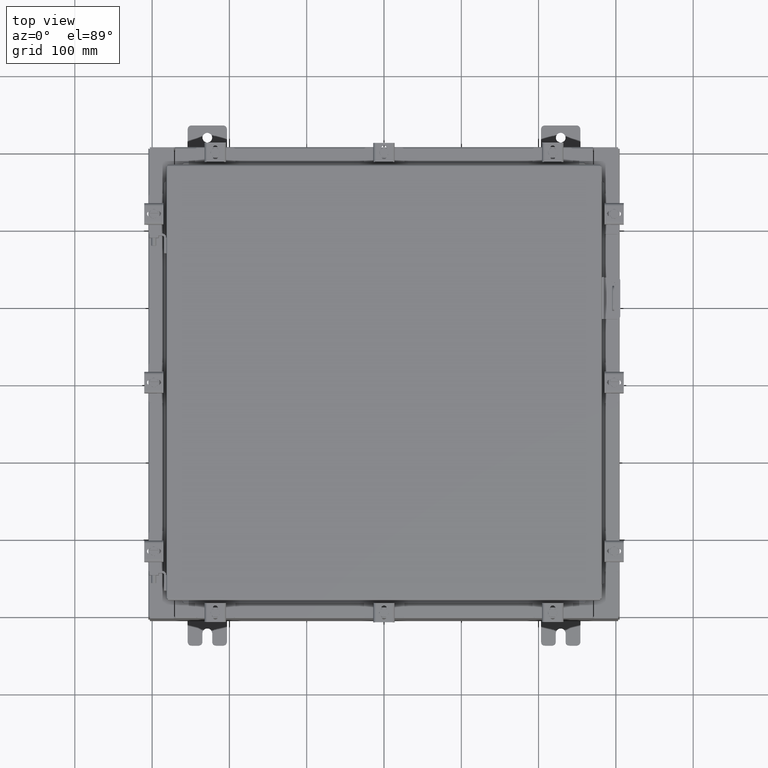
[diagram: clean part render]
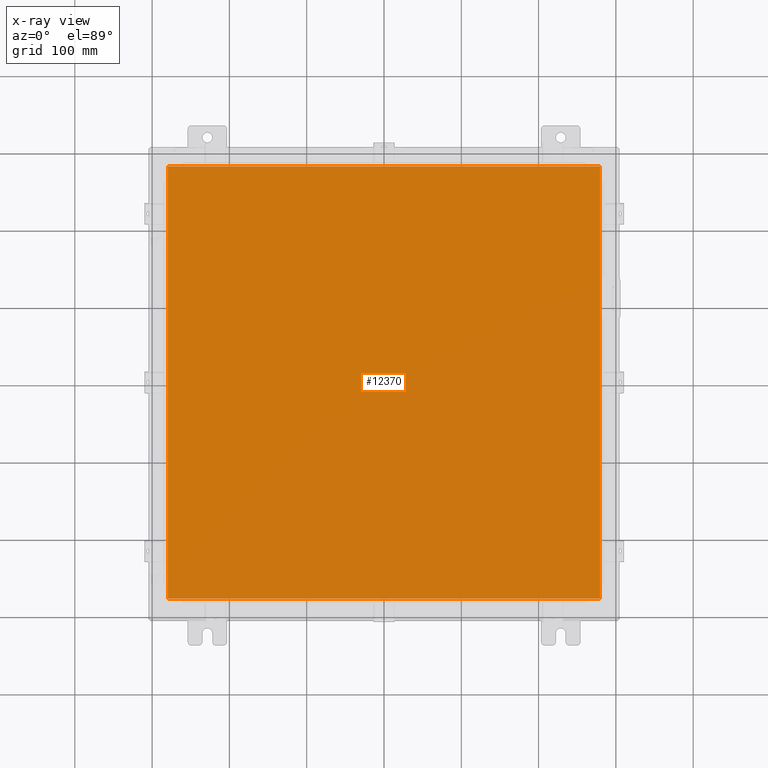
[diagram: x-ray — body ghosted, one internal face saturated and labeled with its STEP entity id]
A machine part, top view, then the same camera in x-ray: the body is ghosted and one INTERNAL B-rep face — a face not visible from any outside direction — is saturated and labeled: STEP entity #12370.
In plain terms, the highlighted planar face has unit normal (0, 0, -1).
Its self-contained STEP definition (entity closure, byte-faithful):
#117 = DIRECTION ( 'NONE',  ( 0.0000000000000000000, 1.000000000000000000, 0.0000000000000000000 ) ) ;
#1817 = CARTESIAN_POINT ( 'NONE',  ( 11.00630000000000000, -11.00630000000000000, -0.07470000000000015500 ) ) ;
#2321 = LINE ( 'NONE', #4789, #20901 ) ;
#2335 = CARTESIAN_POINT ( 'NONE',  ( 11.00630000000000000, 11.00630000000000000, -0.07470000000000015500 ) ) ;
#2382 = CARTESIAN_POINT ( 'NONE',  ( -11.00630000000000000, -11.00630000000000000, -0.07470000000000015500 ) ) ;
#3605 = ORIENTED_EDGE ( 'NONE', *, *, #14393, .F. ) ;
#3793 = DIRECTION ( 'NONE',  ( 0.0000000000000000000, 0.0000000000000000000, -1.000000000000000000 ) ) ;
#4720 = VERTEX_POINT ( 'NONE', #20183 ) ;
#4789 = CARTESIAN_POINT ( 'NONE',  ( -11.00630000000000000, 11.00630000000000000, -0.07470000000000015500 ) ) ;
#5588 = CARTESIAN_POINT ( 'NONE',  ( -11.00630000000000000, 11.00630000000000000, -0.07470000000000015500 ) ) ;
#7158 = AXIS2_PLACEMENT_3D ( 'NONE', #10746, #3793, #16003 ) ;
#7358 = VECTOR ( 'NONE', #15296, 39.37007874015748100 ) ;
#7520 = VECTOR ( 'NONE', #14840, 39.37007874015748100 ) ;
#7904 = LINE ( 'NONE', #13573, #7358 ) ;
#8249 = EDGE_CURVE ( 'NONE', #20319, #16148, #7904, .T. ) ;
#9339 = ORIENTED_EDGE ( 'NONE', *, *, #14686, .F. ) ;
#10218 = EDGE_LOOP ( 'NONE', ( #3605, #9339, #22496, #20526 ) ) ;
#10746 = CARTESIAN_POINT ( 'NONE',  ( 0.0000000000000000000, 0.0000000000000000000, -0.07470000000000015500 ) ) ;
#12370 = ADVANCED_FACE ( 'NONE', ( #19888 ), #14242, .T. ) ;
#12500 = VECTOR ( 'NONE', #117, 39.37007874015748100 ) ;
#13035 = LINE ( 'NONE', #1817, #12500 ) ;
#13086 = CARTESIAN_POINT ( 'NONE',  ( -11.00630000000000000, -11.00630000000000000, -0.07470000000000015500 ) ) ;
#13573 = CARTESIAN_POINT ( 'NONE',  ( 11.00630000000000000, 11.00630000000000000, -0.07470000000000015500 ) ) ;
#14242 = PLANE ( 'NONE',  #7158 ) ;
#14393 = EDGE_CURVE ( 'NONE', #4720, #20319, #13035, .T. ) ;
#14686 = EDGE_CURVE ( 'NONE', #21057, #4720, #16834, .T. ) ;
#14840 = DIRECTION ( 'NONE',  ( 1.000000000000000000, -0.0000000000000000000, -0.0000000000000000000 ) ) ;
#15242 = DIRECTION ( 'NONE',  ( 0.0000000000000000000, -1.000000000000000000, 0.0000000000000000000 ) ) ;
#15296 = DIRECTION ( 'NONE',  ( -1.000000000000000000, -0.0000000000000000000, -0.0000000000000000000 ) ) ;
#15853 = EDGE_CURVE ( 'NONE', #16148, #21057, #2321, .T. ) ;
#16003 = DIRECTION ( 'NONE',  ( -1.000000000000000000, 0.0000000000000000000, -0.0000000000000000000 ) ) ;
#16148 = VERTEX_POINT ( 'NONE', #5588 ) ;
#16834 = LINE ( 'NONE', #13086, #7520 ) ;
#19888 = FACE_OUTER_BOUND ( 'NONE', #10218, .T. ) ;
#20183 = CARTESIAN_POINT ( 'NONE',  ( 11.00630000000000000, -11.00630000000000000, -0.07470000000000015500 ) ) ;
#20319 = VERTEX_POINT ( 'NONE', #2335 ) ;
#20526 = ORIENTED_EDGE ( 'NONE', *, *, #8249, .F. ) ;
#20901 = VECTOR ( 'NONE', #15242, 39.37007874015748100 ) ;
#21057 = VERTEX_POINT ( 'NONE', #2382 ) ;
#22496 = ORIENTED_EDGE ( 'NONE', *, *, #15853, .F. ) ;